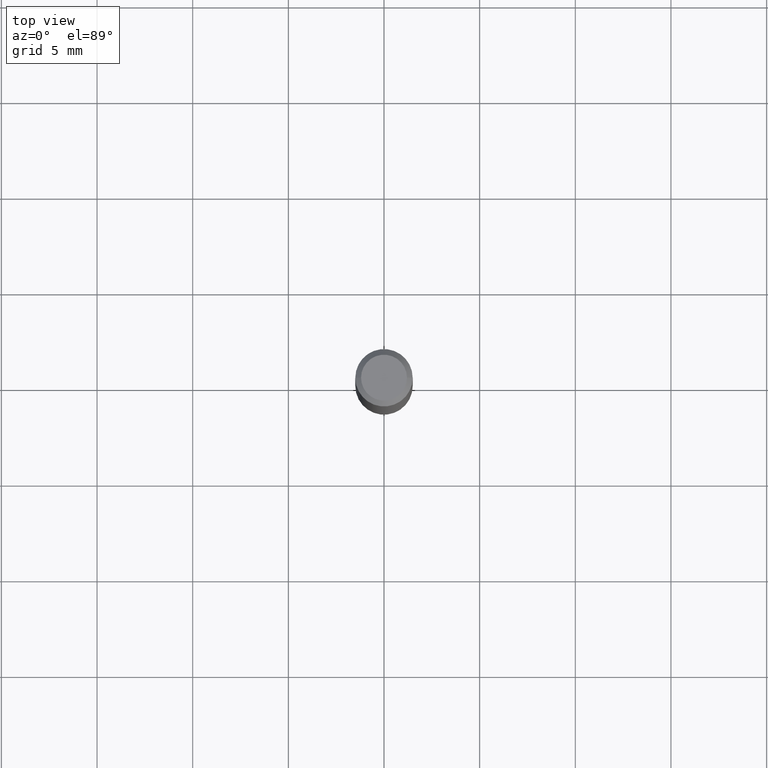
[diagram: clean part render]
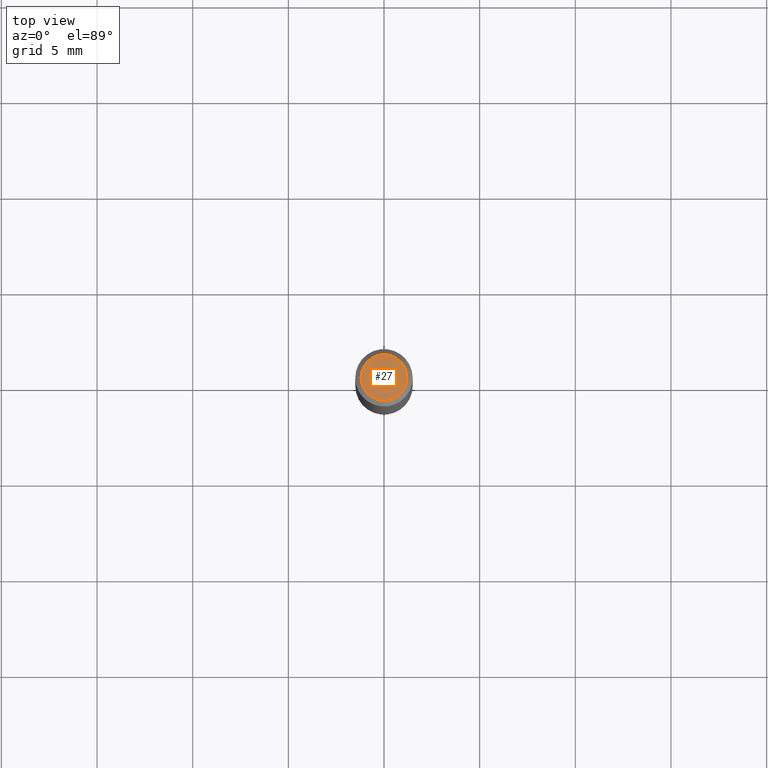
[diagram: same view with one face highlighted and labeled with its STEP entity id]
A machine part, top view. The second image highlights one B-rep face of the part: STEP entity #27.
In plain terms, the highlighted planar face has unit normal (0, -0, -1).
Its self-contained STEP definition (entity closure, byte-faithful):
#10 = DIRECTION ( 'NONE',  ( 1.000000000000000000, -6.982962677686266711E-15, 4.876185090822587894E-29 ) ) ;
#15 = ORIENTED_EDGE ( 'NONE', *, *, #268, .T. ) ;
#27 = ADVANCED_FACE ( 'NONE', ( #455 ), #223, .F. ) ;
#44 = DIRECTION ( 'NONE',  ( 2.438088387897960049E-29, -3.491481338843145188E-15, -1.000000000000000000 ) ) ;
#98 = ORIENTED_EDGE ( 'NONE', *, *, #451, .T. ) ;
#132 = VERTEX_POINT ( 'NONE', #192 ) ;
#152 = AXIS2_PLACEMENT_3D ( 'NONE', #305, #460, #10 ) ;
#166 = AXIS2_PLACEMENT_3D ( 'NONE', #480, #338, #258 ) ;
#191 = CIRCLE ( 'NONE', #152, 0.04724000000000000421 ) ;
#192 = CARTESIAN_POINT ( 'NONE',  ( -0.04724000000000000421, 3.504923541997677355E-16, -3.380025165670481712E-19 ) ) ;
#201 = EDGE_LOOP ( 'NONE', ( #98, #15 ) ) ;
#223 = PLANE ( 'NONE',  #365 ) ;
#257 = VERTEX_POINT ( 'NONE', #275 ) ;
#258 = DIRECTION ( 'NONE',  ( 1.000000000000000000, -6.982962677686266711E-15, 4.876185090822587894E-29 ) ) ;
#268 = EDGE_CURVE ( 'NONE', #257, #132, #191, .T. ) ;
#275 = CARTESIAN_POINT ( 'NONE',  ( 0.04724000000000000421, -3.852183633974369345E-16, -3.380025165621689721E-19 ) ) ;
#295 = DIRECTION ( 'NONE',  ( -1.000000000000000000, 6.982962677686265922E-15, -4.876176775795935793E-29 ) ) ;
#305 = CARTESIAN_POINT ( 'NONE',  ( 8.265746106709734507E-48, -1.180129479067563789E-33, -3.380025165646692144E-19 ) ) ;
#338 = DIRECTION ( 'NONE',  ( -2.445468806185136597E-29, 3.491481338843145583E-15, 1.000000000000000000 ) ) ;
#365 = AXIS2_PLACEMENT_3D ( 'NONE', #382, #44, #295 ) ;
#382 = CARTESIAN_POINT ( 'NONE',  ( 4.132873053354867254E-48, -5.900647395337818946E-34, -1.690012582823346072E-19 ) ) ;
#408 = CIRCLE ( 'NONE', #166, 0.04724000000000000421 ) ;
#451 = EDGE_CURVE ( 'NONE', #132, #257, #408, .T. ) ;
#455 = FACE_OUTER_BOUND ( 'NONE', #201, .T. ) ;
#460 = DIRECTION ( 'NONE',  ( -2.445468806185136597E-29, 3.491481338843145583E-15, 1.000000000000000000 ) ) ;
#480 = CARTESIAN_POINT ( 'NONE',  ( 8.265746106709734507E-48, -1.180129479067563789E-33, -3.380025165646692144E-19 ) ) ;